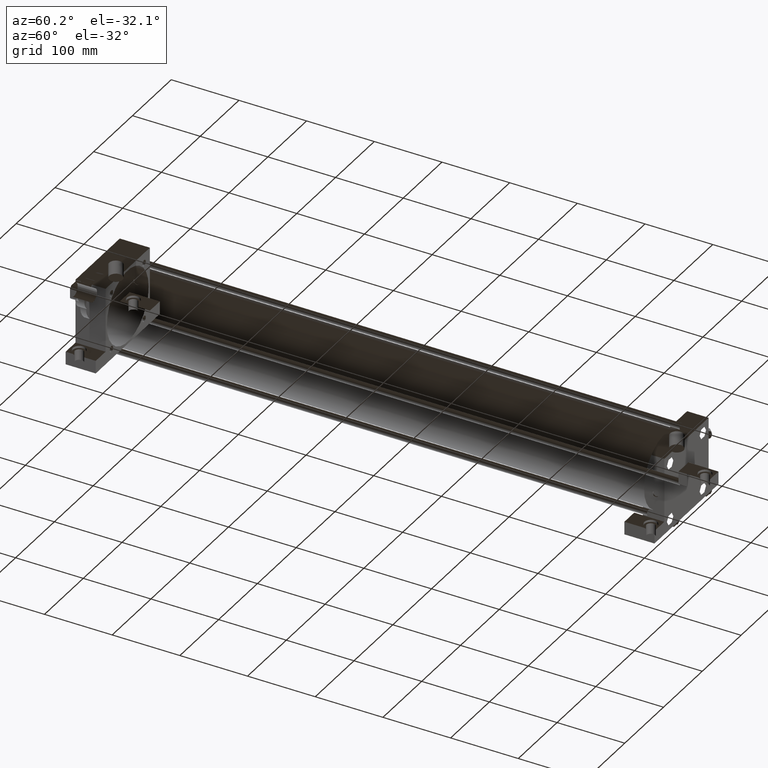
[diagram: clean part render]
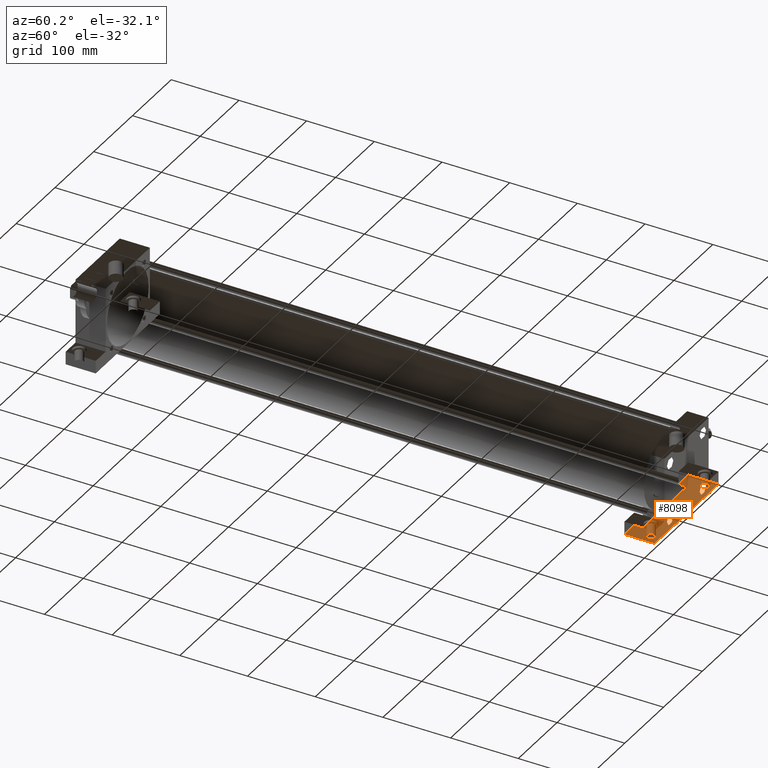
[diagram: same view with one face highlighted and labeled with its STEP entity id]
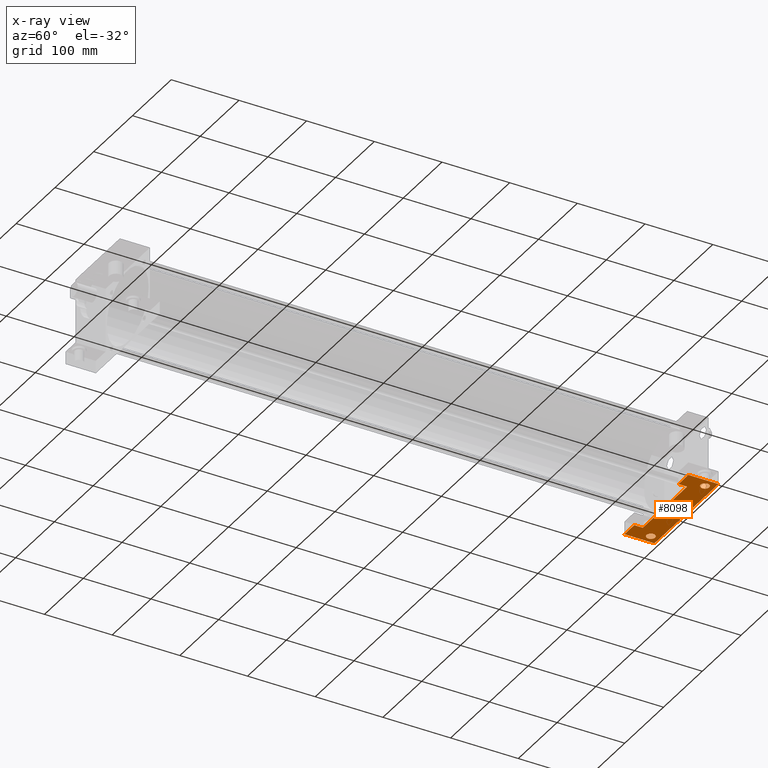
[diagram: x-ray of the same camera — body ghosted, the highlighted face saturated]
A machine part, auxiliary view. The second image highlights one B-rep face of the part: STEP entity #8098.
The next image is the same camera in x-ray: the body ghosted, the highlighted face saturated — about 0% of this face is hidden behind the body in this view.
In plain terms, the highlighted planar face has unit normal (0, 0, 1).
Its self-contained STEP definition (entity closure, byte-faithful):
#3248=EDGE_CURVE('',#3254,#3254,#3249,.T.);
#3249=CIRCLE('',#3250,4.365625000E+000);
#3250=AXIS2_PLACEMENT_3D('',#3251,#3252,#3253);
#3251=CARTESIAN_POINT('',(0.000000000E+000,8.921750000E+002,-5.715000000E+001));
#3252=DIRECTION('',(0.0E+000,0.0E+000,1.0E+000));
#3253=DIRECTION('',(1.0E+000,0.0E+000,0.0E+000));
#3254=VERTEX_POINT('',#3255);
#3255=CARTESIAN_POINT('',(4.365625000E+000,8.921750000E+002,-5.715000000E+001));
#3355=EDGE_CURVE('',#3361,#3361,#3356,.T.);
#3356=CIRCLE('',#3357,6.350000000E+000);
#3357=AXIS2_PLACEMENT_3D('',#3358,#3359,#3360);
#3358=CARTESIAN_POINT('',(-6.985000000E+001,8.921750000E+002,-5.715000000E+001));
#3359=DIRECTION('',(0.0E+000,0.0E+000,1.0E+000));
#3360=DIRECTION('',(1.0E+000,0.0E+000,0.0E+000));
#3361=VERTEX_POINT('',#3362);
#3362=CARTESIAN_POINT('',(-6.350000000E+001,8.921750000E+002,-5.715000000E+001));
#3420=EDGE_CURVE('',#3426,#3426,#3421,.T.);
#3421=CIRCLE('',#3422,6.350000000E+000);
#3422=AXIS2_PLACEMENT_3D('',#3423,#3424,#3425);
#3423=CARTESIAN_POINT('',(6.985000000E+001,8.921750000E+002,-5.715000000E+001));
#3424=DIRECTION('',(0.0E+000,0.0E+000,1.0E+000));
#3425=DIRECTION('',(1.0E+000,0.0E+000,0.0E+000));
#3426=VERTEX_POINT('',#3427);
#3427=CARTESIAN_POINT('',(7.620000000E+001,8.921750000E+002,-5.715000000E+001));
#3434=FACE_OUTER_BOUND('',#3438,.T.);
#3435=FACE_BOUND('',#3439,.T.);
#3436=FACE_BOUND('',#3440,.T.);
#3437=FACE_BOUND('',#3441,.T.);
#3438=EDGE_LOOP('',(#3442));
#3439=EDGE_LOOP('',(#3443));
#3440=EDGE_LOOP('',(#3444));
#3441=EDGE_LOOP('',(#3445,#3446,#3447,#3448,#3449,#3450,#3451,#3452));
#3442=ORIENTED_EDGE('',*,*,#3248,.T.);
#3443=ORIENTED_EDGE('',*,*,#3355,.T.);
#3444=ORIENTED_EDGE('',*,*,#3420,.T.);
#3445=ORIENTED_EDGE('',*,*,#3453,.T.);
#3446=ORIENTED_EDGE('',*,*,#3462,.T.);
#3447=ORIENTED_EDGE('',*,*,#3469,.T.);
#3448=ORIENTED_EDGE('',*,*,#3476,.F.);
#3449=ORIENTED_EDGE('',*,*,#3483,.F.);
#3450=ORIENTED_EDGE('',*,*,#3490,.T.);
#3451=ORIENTED_EDGE('',*,*,#3493,.F.);
#3452=ORIENTED_EDGE('',*,*,#3500,.T.);
#3453=EDGE_CURVE('',#3458,#3459,#3454,.T.);
#3454=LINE('',#3455,#3456);
#3455=CARTESIAN_POINT('',(-5.715000000E+001,9.048750000E+002,-5.715000000E+001));
#3456=VECTOR('',#3457,1.0E+000);
#3457=DIRECTION('',(0.0E+000,-1.0E+000,0.0E+000));
#3458=VERTEX_POINT('',#3460);
#3459=VERTEX_POINT('',#3461);
#3460=CARTESIAN_POINT('',(-5.715000000E+001,8.731250000E+002,-5.715000000E+001));
#3461=CARTESIAN_POINT('',(-5.715000000E+001,8.604250000E+002,-5.715000000E+001));
#3462=EDGE_CURVE('',#3459,#3467,#3463,.T.);
#3463=LINE('',#3464,#3465);
#3464=CARTESIAN_POINT('',(8.255000000E+001,8.604250000E+002,-5.715000000E+001));
#3465=VECTOR('',#3466,1.0E+000);
#3466=DIRECTION('',(-1.0E+000,0.0E+000,0.0E+000));
#3467=VERTEX_POINT('',#3468);
#3468=CARTESIAN_POINT('',(-8.255000000E+001,8.604250000E+002,-5.715000000E+001));
#3469=EDGE_CURVE('',#3467,#3474,#3470,.T.);
#3470=LINE('',#3471,#3472);
#3471=CARTESIAN_POINT('',(-8.255000000E+001,8.604250000E+002,-5.715000000E+001));
#3472=VECTOR('',#3473,1.0E+000);
#3473=DIRECTION('',(0.0E+000,1.0E+000,0.0E+000));
#3474=VERTEX_POINT('',#3475);
#3475=CARTESIAN_POINT('',(-8.255000000E+001,9.048750000E+002,-5.715000000E+001));
#3476=EDGE_CURVE('',#3481,#3474,#3477,.T.);
#3477=LINE('',#3478,#3479);
#3478=CARTESIAN_POINT('',(5.715000000E+001,9.048750000E+002,-5.715000000E+001));
#3479=VECTOR('',#3480,1.0E+000);
#3480=DIRECTION('',(-1.0E+000,0.0E+000,0.0E+000));
#3481=VERTEX_POINT('',#3482);
#3482=CARTESIAN_POINT('',(8.255000000E+001,9.048750000E+002,-5.715000000E+001));
#3483=EDGE_CURVE('',#3488,#3481,#3484,.T.);
#3484=LINE('',#3485,#3486);
#3485=CARTESIAN_POINT('',(8.255000000E+001,8.604250000E+002,-5.715000000E+001));
#3486=VECTOR('',#3487,1.0E+000);
#3487=DIRECTION('',(0.0E+000,1.0E+000,0.0E+000));
#3488=VERTEX_POINT('',#3489);
#3489=CARTESIAN_POINT('',(8.255000000E+001,8.604250000E+002,-5.715000000E+001));
#3490=EDGE_CURVE('',#3488,#3491,#3463,.T.);
#3491=VERTEX_POINT('',#3492);
#3492=CARTESIAN_POINT('',(5.715000000E+001,8.604250000E+002,-5.715000000E+001));
#3493=EDGE_CURVE('',#3498,#3491,#3494,.T.);
#3494=LINE('',#3495,#3496);
#3495=CARTESIAN_POINT('',(5.715000000E+001,9.048750000E+002,-5.715000000E+001));
#3496=VECTOR('',#3497,1.0E+000);
#3497=DIRECTION('',(0.0E+000,-1.0E+000,0.0E+000));
#3498=VERTEX_POINT('',#3499);
#3499=CARTESIAN_POINT('',(5.715000000E+001,8.731250000E+002,-5.715000000E+001));
#3500=EDGE_CURVE('',#3498,#3458,#3501,.T.);
#3501=LINE('',#3502,#3503);
#3502=CARTESIAN_POINT('',(5.715000000E+001,8.731250000E+002,-5.715000000E+001));
#3503=VECTOR('',#3504,1.0E+000);
#3504=DIRECTION('',(-1.0E+000,0.0E+000,0.0E+000));
#3505=PLANE('',#3506);
#3506=AXIS2_PLACEMENT_3D('',#3507,#3508,#3509);
#3507=CARTESIAN_POINT('',(8.255000000E+001,9.048750000E+002,-5.715000000E+001));
#3508=DIRECTION('',(0.0E+000,0.0E+000,1.0E+000));
#3509=DIRECTION('',(1.0E+000,0.0E+000,0.0E+000));
#8098=ADVANCED_FACE('',(#3434,#3435,#3436,#3437),#3505,.F.);